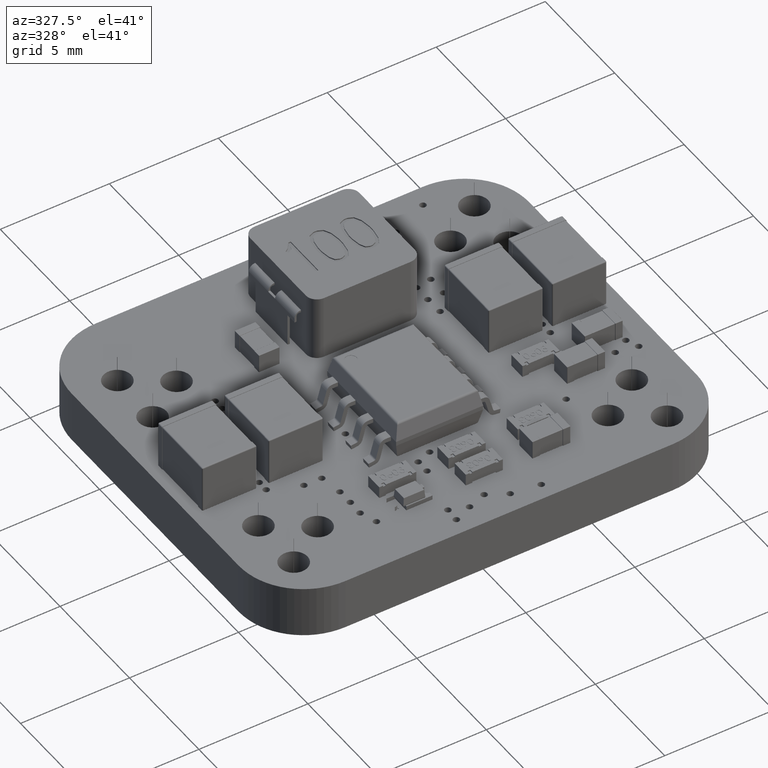
[diagram: clean part render]
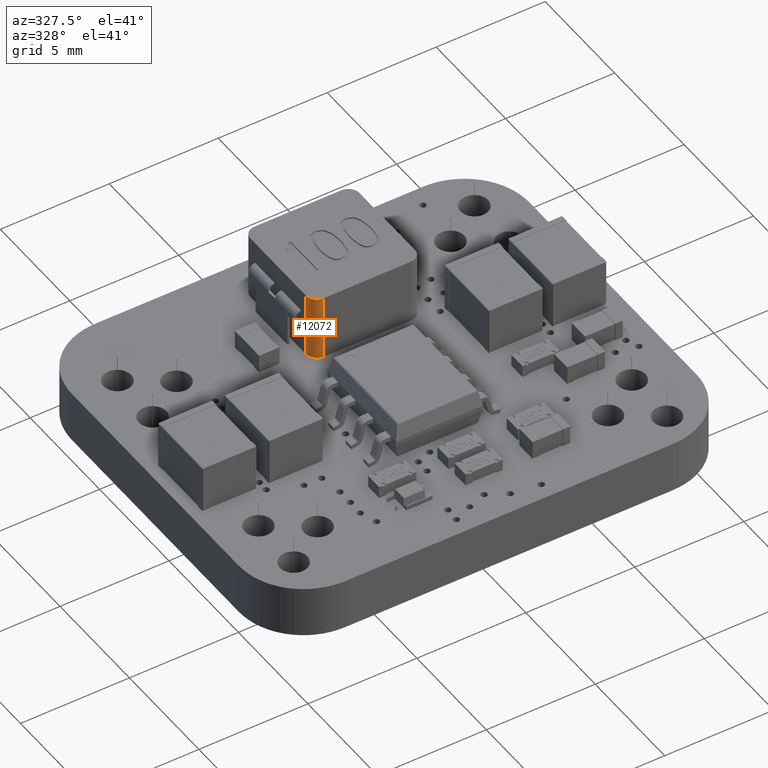
[diagram: same view with one face highlighted and labeled with its STEP entity id]
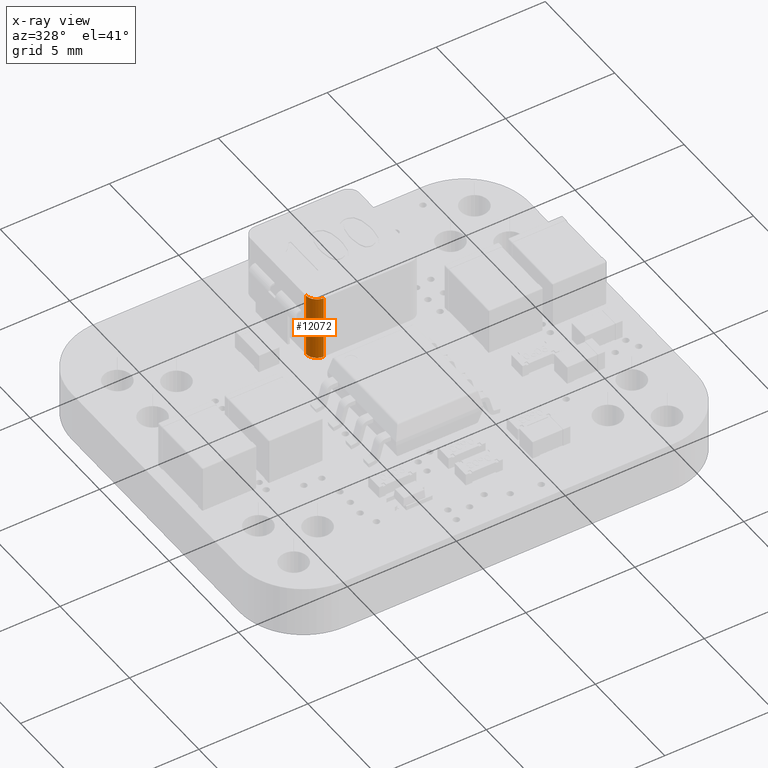
[diagram: x-ray of the same camera — body ghosted, the highlighted face saturated]
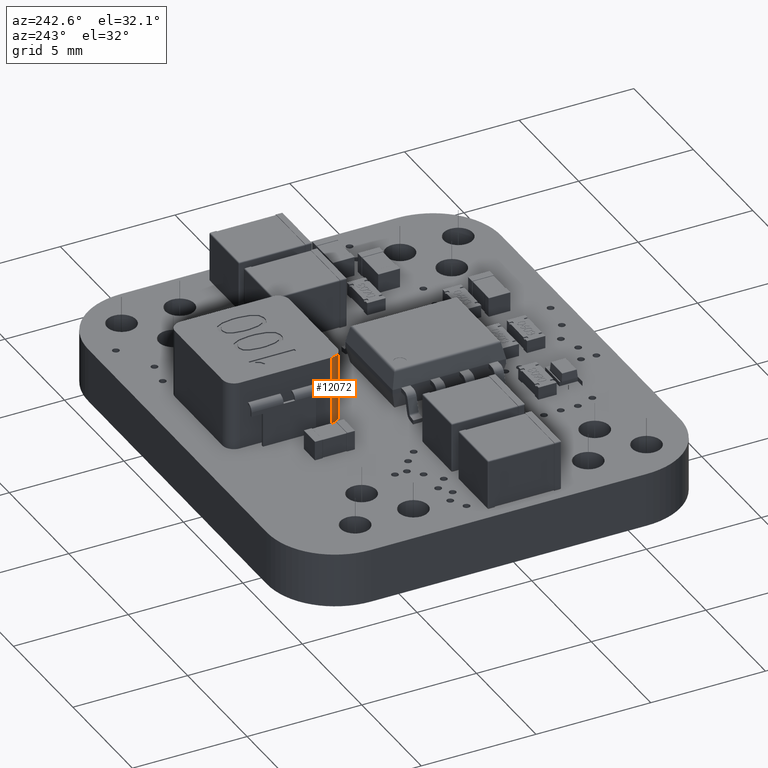
[diagram: same view with one face highlighted and labeled with its STEP entity id]
A machine part, auxiliary view. The second image highlights one B-rep face of the part: STEP entity #12072.
The next image is the same camera in x-ray: the body ghosted, the highlighted face saturated — about 0% of this face is hidden behind the body in this view.
A second angle (auxiliary view) of the same face is appended — the face is thin or edge-on in the first view.
In plain terms, the highlighted cylindrical surface (edge-blend (fillet) strip) has radius 0.5 mm, axis along (0, -0, 1).
Its self-contained STEP definition (entity closure, byte-faithful):
#10089 = VERTEX_POINT('',#10090);
#10090 = CARTESIAN_POINT('',(-5.,3.,-0.5));
#10096 = EDGE_CURVE('',#10097,#10089,#10099,.T.);
#10097 = VERTEX_POINT('',#10098);
#10098 = CARTESIAN_POINT('',(-4.5,3.,1.13841228111E-15));
#10099 = CIRCLE('',#10100,0.5);
#10100 = AXIS2_PLACEMENT_3D('',#10101,#10102,#10103);
#10101 = CARTESIAN_POINT('',(-4.5,3.,-0.5));
#10102 = DIRECTION('',(0.,-1.,0.));
#10103 = DIRECTION('',(0.,0.,1.));
#11228 = EDGE_CURVE('',#10097,#11229,#11231,.T.);
#11229 = VERTEX_POINT('',#11230);
#11230 = CARTESIAN_POINT('',(-4.5,0.,9.73613550892E-16));
#11231 = LINE('',#11232,#11233);
#11232 = CARTESIAN_POINT('',(-4.5,0.,9.71445146547E-16));
#11233 = VECTOR('',#11234,1.);
#11234 = DIRECTION('',(-0.,-1.,-0.));
#11351 = VERTEX_POINT('',#11352);
#11352 = CARTESIAN_POINT('',(-5.,0.,-0.5));
#11358 = EDGE_CURVE('',#11351,#10089,#11359,.T.);
#11359 = LINE('',#11360,#11361);
#11360 = CARTESIAN_POINT('',(-5.,0.,-0.5));
#11361 = VECTOR('',#11362,1.);
#11362 = DIRECTION('',(0.,1.,-0.));
#12072 = ADVANCED_FACE('',(#12073),#12085,.T.);
#12073 = FACE_BOUND('',#12074,.T.);
#12074 = EDGE_LOOP('',(#12075,#12076,#12077,#12084));
#12075 = ORIENTED_EDGE('',*,*,#10096,.T.);
#12076 = ORIENTED_EDGE('',*,*,#11358,.F.);
#12077 = ORIENTED_EDGE('',*,*,#12078,.T.);
#12078 = EDGE_CURVE('',#11351,#11229,#12079,.T.);
#12079 = CIRCLE('',#12080,0.5);
#12080 = AXIS2_PLACEMENT_3D('',#12081,#12082,#12083);
#12081 = CARTESIAN_POINT('',(-4.5,0.,-0.5));
#12082 = DIRECTION('',(0.,1.,0.));
#12083 = DIRECTION('',(0.,-0.,1.));
#12084 = ORIENTED_EDGE('',*,*,#11228,.F.);
#12085 = CYLINDRICAL_SURFACE('',#12086,0.5);
#12086 = AXIS2_PLACEMENT_3D('',#12087,#12088,#12089);
#12087 = CARTESIAN_POINT('',(-4.5,0.,-0.5));
#12088 = DIRECTION('',(0.,1.,0.));
#12089 = DIRECTION('',(0.,-0.,1.));